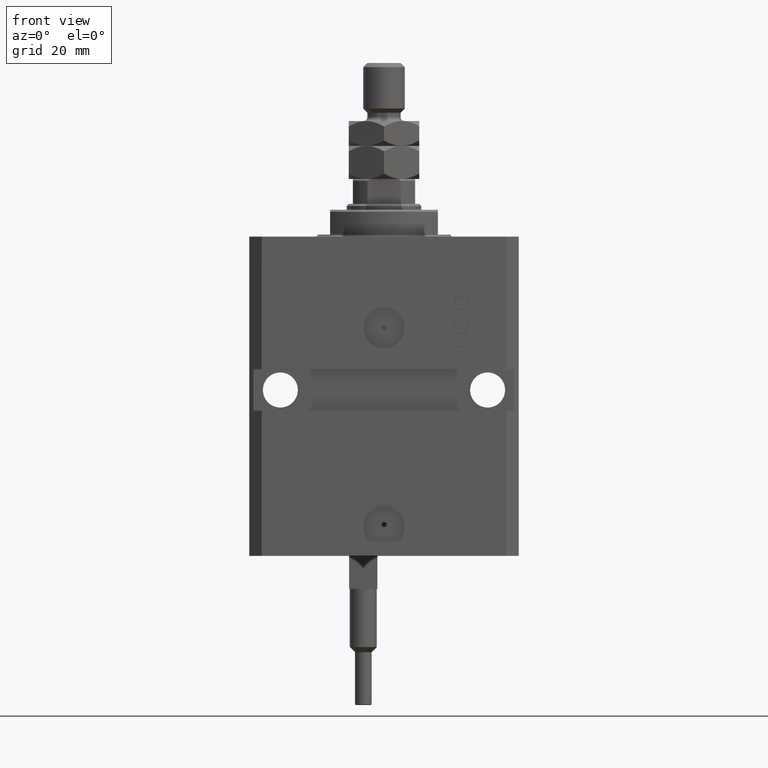
[diagram: clean part render]
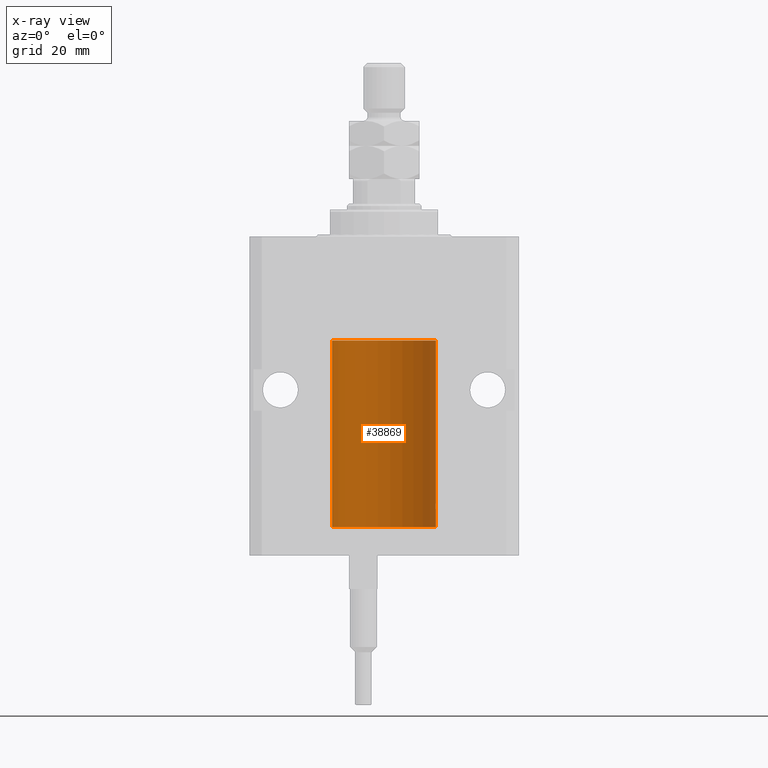
[diagram: x-ray — body ghosted, one internal face saturated and labeled with its STEP entity id]
A machine part, front view, then the same camera in x-ray: the body is ghosted and one INTERNAL B-rep face — a face not visible from any outside direction — is saturated and labeled: STEP entity #38869.
In plain terms, the highlighted cylindrical surface (partial cylindrical patch) has radius 12.5 mm, axis along (0, 0, 1).
Its self-contained STEP definition (entity closure, byte-faithful):
#1834 = CARTESIAN_POINT ( 'NONE',  ( -12.50000000000000000, 1.530808498934191127E-15, -70.09999999999999432 ) ) ;
#3083 = CARTESIAN_POINT ( 'NONE',  ( 12.48520578595314845, 0.6087855079133740466, -64.83656717509344958 ) ) ;
#4288 = CARTESIAN_POINT ( 'NONE',  ( 12.49915742890631876, 0.1636982395582385896, -65.60872397847025184 ) ) ;
#4552 = CARTESIAN_POINT ( 'NONE',  ( 12.48809900631782099, 0.5573988467445673001, -65.32640147935475738 ) ) ;
#4916 = VERTEX_POINT ( 'NONE', #22457 ) ;
#6314 = FACE_OUTER_BOUND ( 'NONE', #9271, .T. ) ;
#7696 = AXIS2_PLACEMENT_3D ( 'NONE', #35055, #38549, #31059 ) ;
#8103 = ORIENTED_EDGE ( 'NONE', *, *, #41557, .T. ) ;
#9271 = EDGE_LOOP ( 'NONE', ( #44018, #13766, #10438, #31344, #24061, #8103, #9925 ) ) ;
#9292 = CARTESIAN_POINT ( 'NONE',  ( -12.50000000000000000, 1.530808498934191127E-15, -70.09999999999999432 ) ) ;
#9491 = B_SPLINE_CURVE_WITH_KNOTS ( 'NONE', 3,
 ( #37406, #41653, #3083, #44447, #14594, #10120, #41169, #26373 ),
 .UNSPECIFIED., .F., .F.,
 ( 4, 2, 2, 4 ),
 ( 0.0009773924225142606621, 0.001221629287363811033, 0.001465866152213361404, 0.001954339881912461711 ),
 .UNSPECIFIED. ) ;
#9925 = ORIENTED_EDGE ( 'NONE', *, *, #18705, .T. ) ;
#10120 = CARTESIAN_POINT ( 'NONE',  ( 12.49631206032076136, 0.3252904079142934779, -64.44139700214927302 ) ) ;
#10293 = DIRECTION ( 'NONE',  ( -0.000000000000000000, -0.000000000000000000, 1.000000000000000000 ) ) ;
#10434 = CARTESIAN_POINT ( 'NONE',  ( 12.50000000000000000, -1.836039810331332019E-15, -65.62500000000000000 ) ) ;
#10438 = ORIENTED_EDGE ( 'NONE', *, *, #36116, .T. ) ;
#10491 = VERTEX_POINT ( 'NONE', #24057 ) ;
#11384 = VECTOR ( 'NONE', #39882, 1000.000000000000000 ) ;
#11935 = DIRECTION ( 'NONE',  ( -0.000000000000000000, -0.000000000000000000, 1.000000000000000000 ) ) ;
#12459 = DIRECTION ( 'NONE',  ( 1.000000000000000000, 0.000000000000000000, 0.000000000000000000 ) ) ;
#13369 = CARTESIAN_POINT ( 'NONE',  ( 12.50000000000000000, 0.000000000000000000, -70.09999999999999432 ) ) ;
#13606 = LINE ( 'NONE', #13369, #16960 ) ;
#13766 = ORIENTED_EDGE ( 'NONE', *, *, #32806, .F. ) ;
#14153 = EDGE_CURVE ( 'NONE', #35951, #22486, #40806, .T. ) ;
#14594 = CARTESIAN_POINT ( 'NONE',  ( 12.49012055744648997, 0.5002956126656082914, -64.61641710202404454 ) ) ;
#15954 = DIRECTION ( 'NONE',  ( 0.000000000000000000, 0.000000000000000000, 1.000000000000000000 ) ) ;
#16960 = VECTOR ( 'NONE', #32901, 1000.000000000000000 ) ;
#18705 = EDGE_CURVE ( 'NONE', #29646, #4916, #25588, .T. ) ;
#22457 = CARTESIAN_POINT ( 'NONE',  ( -12.50000000000000000, 1.530808498934191127E-15, -25.10000000000000142 ) ) ;
#22486 = VERTEX_POINT ( 'NONE', #35364 ) ;
#24057 = CARTESIAN_POINT ( 'NONE',  ( 12.50000000000000000, 0.000000000000000000, -70.09999999999999432 ) ) ;
#24061 = ORIENTED_EDGE ( 'NONE', *, *, #26732, .T. ) ;
#25588 = CIRCLE ( 'NONE', #26396, 12.50000000000000000 ) ;
#25590 = DIRECTION ( 'NONE',  ( 1.000000000000000000, 0.000000000000000000, 0.000000000000000000 ) ) ;
#26373 = CARTESIAN_POINT ( 'NONE',  ( 12.50000000000017941, 3.868073689162038701E-13, -64.37499999999640465 ) ) ;
#26396 = AXIS2_PLACEMENT_3D ( 'NONE', #38259, #15954, #12459 ) ;
#26732 = EDGE_CURVE ( 'NONE', #22486, #35040, #9491, .T. ) ;
#27086 = CARTESIAN_POINT ( 'NONE',  ( 12.49625698805481022, 0.3151108292486944906, -65.54593695688173227 ) ) ;
#28563 = CIRCLE ( 'NONE', #7696, 12.50000000000000000 ) ;
#29646 = VERTEX_POINT ( 'NONE', #38276 ) ;
#31059 = DIRECTION ( 'NONE',  ( 1.000000000000000000, 0.000000000000000000, 0.000000000000000000 ) ) ;
#31344 = ORIENTED_EDGE ( 'NONE', *, *, #14153, .T. ) ;
#31363 = CARTESIAN_POINT ( 'NONE',  ( 12.48436522214885969, 0.6250000000001505462, -65.16312747540307271 ) ) ;
#31498 = LINE ( 'NONE', #41997, #44387 ) ;
#32428 = AXIS2_PLACEMENT_3D ( 'NONE', #32887, #10293, #25590 ) ;
#32806 = EDGE_CURVE ( 'NONE', #10491, #39429, #28563, .T. ) ;
#32887 = CARTESIAN_POINT ( 'NONE',  ( 0.000000000000000000, 0.000000000000000000, -70.09999999999999432 ) ) ;
#32901 = DIRECTION ( 'NONE',  ( -0.000000000000000000, -0.000000000000000000, 1.000000000000000000 ) ) ;
#33665 = CARTESIAN_POINT ( 'NONE',  ( 12.50000000000017941, 3.868073689162038701E-13, -64.37499999999640465 ) ) ;
#35040 = VERTEX_POINT ( 'NONE', #33665 ) ;
#35055 = CARTESIAN_POINT ( 'NONE',  ( 0.000000000000000000, 0.000000000000000000, -70.09999999999999432 ) ) ;
#35364 = CARTESIAN_POINT ( 'NONE',  ( 12.48436522214846711, 0.6250000000078848039, -64.99999999999923261 ) ) ;
#35951 = VERTEX_POINT ( 'NONE', #10434 ) ;
#36116 = EDGE_CURVE ( 'NONE', #10491, #35951, #31498, .T. ) ;
#37406 = CARTESIAN_POINT ( 'NONE',  ( 12.48436522214846711, 0.6250000000078848039, -64.99999999999923261 ) ) ;
#38259 = CARTESIAN_POINT ( 'NONE',  ( 0.000000000000000000, 0.000000000000000000, -25.10000000000000142 ) ) ;
#38276 = CARTESIAN_POINT ( 'NONE',  ( 12.50000000000000000, 0.000000000000000000, -25.10000000000000142 ) ) ;
#38549 = DIRECTION ( 'NONE',  ( 0.000000000000000000, 0.000000000000000000, 1.000000000000000000 ) ) ;
#38610 = CARTESIAN_POINT ( 'NONE',  ( 12.50000000000000000, -1.836039810331332019E-15, -65.62500000000000000 ) ) ;
#38867 = CARTESIAN_POINT ( 'NONE',  ( 12.48436522214846711, 0.6250000000078848039, -64.99999999999923261 ) ) ;
#38869 = ADVANCED_FACE ( 'NONE', ( #6314 ), #40876, .F. ) ;
#39429 = VERTEX_POINT ( 'NONE', #1834 ) ;
#39882 = DIRECTION ( 'NONE',  ( -0.000000000000000000, -0.000000000000000000, 1.000000000000000000 ) ) ;
#40806 = B_SPLINE_CURVE_WITH_KNOTS ( 'NONE', 3,
 ( #38610, #46626, #4288, #27086, #42369, #4552, #31363, #38867 ),
 .UNSPECIFIED., .F., .F.,
 ( 4, 2, 2, 4 ),
 ( 1.784246692340212412E-18, 0.0002443481056285665750, 0.0004886962112571313068, 0.0009773924225142606621 ),
 .UNSPECIFIED. ) ;
#40876 = CYLINDRICAL_SURFACE ( 'NONE', #32428, 12.50000000000000000 ) ;
#41169 = CARTESIAN_POINT ( 'NONE',  ( 12.49999999999999822, 0.1631389616600901760, -64.37500000000022737 ) ) ;
#41557 = EDGE_CURVE ( 'NONE', #35040, #29646, #13606, .T. ) ;
#41653 = CARTESIAN_POINT ( 'NONE',  ( 12.48436522214888100, 0.6249999999996834754, -64.91847339462351840 ) ) ;
#41997 = CARTESIAN_POINT ( 'NONE',  ( 12.50000000000000000, 0.000000000000000000, -70.09999999999999432 ) ) ;
#42369 = CARTESIAN_POINT ( 'NONE',  ( 12.49421963472024721, 0.3844519291903572555, -65.49947303647046226 ) ) ;
#43619 = LINE ( 'NONE', #9292, #11384 ) ;
#44018 = ORIENTED_EDGE ( 'NONE', *, *, #48229, .F. ) ;
#44387 = VECTOR ( 'NONE', #11935, 1000.000000000000000 ) ;
#44447 = CARTESIAN_POINT ( 'NONE',  ( 12.48810305280568222, 0.5461368461738485003, -64.68525466142676805 ) ) ;
#46626 = CARTESIAN_POINT ( 'NONE',  ( 12.49999999999999822, 0.08262306818362624705, -65.62500000000000000 ) ) ;
#48229 = EDGE_CURVE ( 'NONE', #39429, #4916, #43619, .T. ) ;